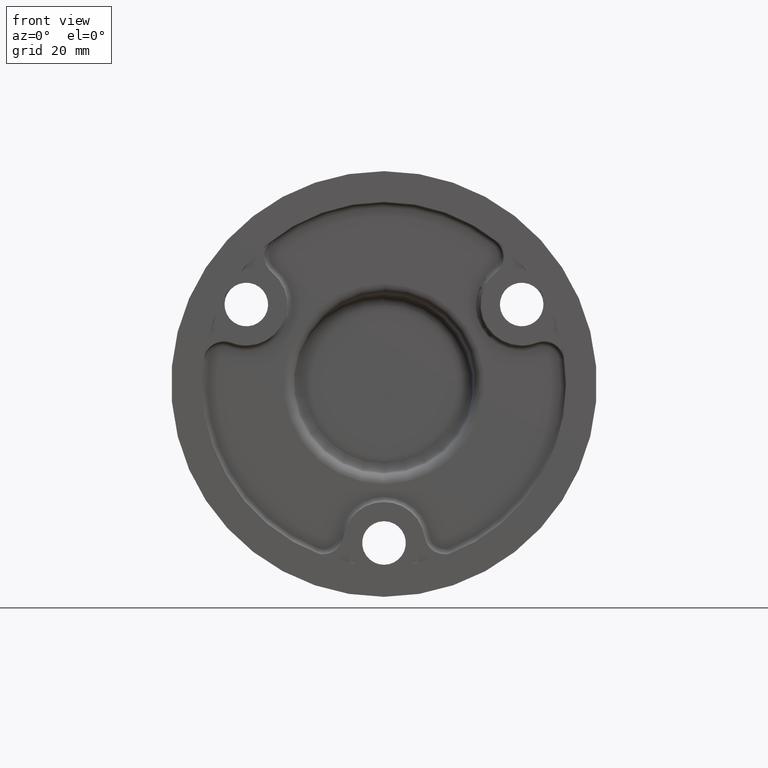
[diagram: clean part render]
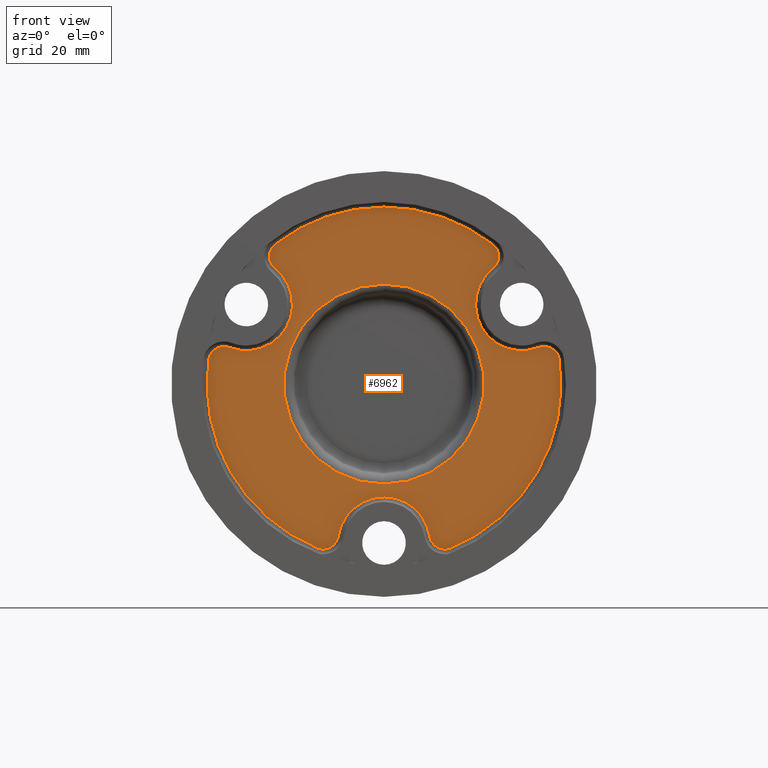
[diagram: same view with one face highlighted and labeled with its STEP entity id]
A machine part, front view. The second image highlights one B-rep face of the part: STEP entity #6962.
In plain terms, the highlighted planar face has unit normal (0, 1, 0).
Its self-contained STEP definition (entity closure, byte-faithful):
#293 = EDGE_CURVE ( 'NONE', #2422, #19411, #5882, .T. ) ;
#458 = DIRECTION ( 'NONE',  ( -0.000000000000000000, 1.000000000000000000, -0.000000000000000000 ) ) ;
#520 = DIRECTION ( 'NONE',  ( 0.000000000000000000, 0.000000000000000000, 1.000000000000000000 ) ) ;
#608 = CARTESIAN_POINT ( 'NONE',  ( -12.99106045790569119, 2.000000000000000000, -31.96063748079876987 ) ) ;
#694 = CIRCLE ( 'NONE', #8969, 3.000000000000002665 ) ;
#972 = ORIENTED_EDGE ( 'NONE', *, *, #11620, .T. ) ;
#1078 = DIRECTION ( 'NONE',  ( 0.000000000000000000, -1.000000000000000000, 0.000000000000000000 ) ) ;
#1114 = ORIENTED_EDGE ( 'NONE', *, *, #8830, .T. ) ;
#1126 = AXIS2_PLACEMENT_3D ( 'NONE', #15956, #5503, #20978 ) ;
#1389 = PLANE ( 'NONE',  #22697 ) ;
#1899 = ORIENTED_EDGE ( 'NONE', *, *, #17568, .T. ) ;
#1957 = DIRECTION ( 'NONE',  ( 0.000000000000000000, 0.000000000000000000, 1.000000000000000000 ) ) ;
#1960 = VERTEX_POINT ( 'NONE', #17996 ) ;
#2004 = EDGE_CURVE ( 'NONE', #1960, #8887, #9904, .T. ) ;
#2156 = CIRCLE ( 'NONE', #18015, 9.000000000000001776 ) ;
#2239 = DIRECTION ( 'NONE',  ( 0.000000000000000000, 0.000000000000000000, 1.000000000000000000 ) ) ;
#2248 = CARTESIAN_POINT ( 'NONE',  ( 30.11363182643359693, 2.000000000000000000, 7.113837095548773526 ) ) ;
#2324 = AXIS2_PLACEMENT_3D ( 'NONE', #19311, #17654, #1957 ) ;
#2326 = CIRCLE ( 'NONE', #16801, 34.50000000000000000 ) ;
#2354 = ORIENTED_EDGE ( 'NONE', *, *, #2004, .T. ) ;
#2370 = EDGE_CURVE ( 'NONE', #7228, #9837, #13449, .T. ) ;
#2422 = VERTEX_POINT ( 'NONE', #2248 ) ;
#2897 = VERTEX_POINT ( 'NONE', #11093 ) ;
#2967 = VERTEX_POINT ( 'NONE', #6305 ) ;
#3172 = DIRECTION ( 'NONE',  ( -0.000000000000000000, 1.000000000000000000, 0.000000000000000000 ) ) ;
#3239 = DIRECTION ( 'NONE',  ( -0.000000000000000000, 1.000000000000000000, -0.000000000000000000 ) ) ;
#3262 = CIRCLE ( 'NONE', #17290, 9.000000000000001776 ) ;
#3314 = CIRCLE ( 'NONE', #19716, 34.50000000000000000 ) ;
#3476 = AXIS2_PLACEMENT_3D ( 'NONE', #3856, #5489, #2239 ) ;
#3856 = CARTESIAN_POINT ( 'NONE',  ( -19.34117690268907808, 2.000000000000000000, 24.86300215217154275 ) ) ;
#3870 = CARTESIAN_POINT ( 'NONE',  ( 11.86140302678345293, 2.000000000000000000, -29.18145161290322420 ) ) ;
#3940 = CARTESIAN_POINT ( 'NONE',  ( 12.99106045790568942, 2.000000000000000000, -31.96063748079876987 ) ) ;
#4428 = CARTESIAN_POINT ( 'NONE',  ( 21.21757955634593173, 2.000000000000000000, 22.52225161412889065 ) ) ;
#4505 = CIRCLE ( 'NONE', #12132, 19.50000000000000355 ) ;
#4524 = CARTESIAN_POINT ( 'NONE',  ( -11.86140302678345293, 2.000000000000000000, -29.18145161290322420 ) ) ;
#4537 = ORIENTED_EDGE ( 'NONE', *, *, #14220, .T. ) ;
#4640 = EDGE_CURVE ( 'NONE', #2967, #8543, #3262, .T. ) ;
#4680 = CARTESIAN_POINT ( 'NONE',  ( 0.000000000000000000, 2.000000000000000000, -22.00000000000000000 ) ) ;
#4812 = AXIS2_PLACEMENT_3D ( 'NONE', #10319, #22487, #18897 ) ;
#4845 = CARTESIAN_POINT ( 'NONE',  ( 31.20257992947228587, 2.000000000000000000, 7.318449460731654810 ) ) ;
#4991 = EDGE_CURVE ( 'NONE', #8887, #11825, #2156, .T. ) ;
#5054 = CIRCLE ( 'NONE', #14756, 3.000000000000002665 ) ;
#5489 = DIRECTION ( 'NONE',  ( 0.000000000000000000, -1.000000000000000000, 0.000000000000000000 ) ) ;
#5503 = DIRECTION ( 'NONE',  ( 0.000000000000000000, -1.000000000000000000, 0.000000000000000000 ) ) ;
#5523 = CARTESIAN_POINT ( 'NONE',  ( -30.11363182643369996, 2.000000000000000000, 7.113837095548353417 ) ) ;
#5807 = DIRECTION ( 'NONE',  ( 0.000000000000000000, 0.000000000000000000, 1.000000000000000000 ) ) ;
#5875 = EDGE_CURVE ( 'NONE', #8120, #2422, #12267, .T. ) ;
#5882 = CIRCLE ( 'NONE', #4812, 9.000000000000001776 ) ;
#6027 = DIRECTION ( 'NONE',  ( 0.000000000000000000, -1.000000000000000000, 0.000000000000000000 ) ) ;
#6284 = DIRECTION ( 'NONE',  ( 0.000000000000000000, 0.000000000000000000, 1.000000000000000000 ) ) ;
#6305 = CARTESIAN_POINT ( 'NONE',  ( -8.896052270087592362, 2.000000000000000000, -29.63608870967742348 ) ) ;
#6401 = DIRECTION ( 'NONE',  ( 0.000000000000000000, 0.000000000000000000, 1.000000000000000000 ) ) ;
#6550 = CARTESIAN_POINT ( 'NONE',  ( -21.21757955634624793, 2.000000000000000000, 22.52225161412859933 ) ) ;
#6687 = DIRECTION ( 'NONE',  ( 0.000000000000000000, -1.000000000000000000, 0.000000000000000000 ) ) ;
#6824 = AXIS2_PLACEMENT_3D ( 'NONE', #3870, #21218, #12726 ) ;
#6962 = ADVANCED_FACE ( 'NONE', ( #11163, #18823 ), #1389, .F. ) ;
#7112 = CIRCLE ( 'NONE', #10444, 2.999999999999998224 ) ;
#7197 = CARTESIAN_POINT ( 'NONE',  ( 0.000000000000000000, 2.000000000000000000, 0.000000000000000000 ) ) ;
#7216 = ORIENTED_EDGE ( 'NONE', *, *, #21470, .T. ) ;
#7228 = VERTEX_POINT ( 'NONE', #15320 ) ;
#7691 = AXIS2_PLACEMENT_3D ( 'NONE', #13385, #14923, #11457 ) ;
#7859 = AXIS2_PLACEMENT_3D ( 'NONE', #12180, #3239, #17314 ) ;
#8120 = VERTEX_POINT ( 'NONE', #4845 ) ;
#8202 = ORIENTED_EDGE ( 'NONE', *, *, #293, .T. ) ;
#8543 = VERTEX_POINT ( 'NONE', #4680 ) ;
#8830 = EDGE_CURVE ( 'NONE', #19411, #13133, #694, .T. ) ;
#8887 = VERTEX_POINT ( 'NONE', #6550 ) ;
#8969 = AXIS2_PLACEMENT_3D ( 'NONE', #10029, #1078, #6401 ) ;
#9000 = AXIS2_PLACEMENT_3D ( 'NONE', #20770, #22527, #12064 ) ;
#9083 = CARTESIAN_POINT ( 'NONE',  ( 0.000000000000000000, 2.000000000000000000, -31.00000000000000000 ) ) ;
#9141 = EDGE_CURVE ( 'NONE', #22595, #7228, #7112, .T. ) ;
#9542 = ORIENTED_EDGE ( 'NONE', *, *, #4640, .T. ) ;
#9650 = AXIS2_PLACEMENT_3D ( 'NONE', #13628, #9795, #11554 ) ;
#9795 = DIRECTION ( 'NONE',  ( 0.000000000000000000, -1.000000000000000000, 0.000000000000000000 ) ) ;
#9837 = VERTEX_POINT ( 'NONE', #608 ) ;
#9904 = CIRCLE ( 'NONE', #3476, 2.999999999999999112 ) ;
#10029 = CARTESIAN_POINT ( 'NONE',  ( 19.34117690268872991, 2.000000000000000000, 24.86300215217181275 ) ) ;
#10319 = CARTESIAN_POINT ( 'NONE',  ( 26.84678751731753010, 2.000000000000000000, 15.50000000000012790 ) ) ;
#10444 = AXIS2_PLACEMENT_3D ( 'NONE', #19695, #21489, #520 ) ;
#10568 = EDGE_CURVE ( 'NONE', #11640, #17831, #16604, .T. ) ;
#10633 = CARTESIAN_POINT ( 'NONE',  ( 21.18319375056384501, 2.000000000000000000, 27.23090711904531958 ) ) ;
#10705 = EDGE_CURVE ( 'NONE', #16999, #8120, #14151, .T. ) ;
#10834 = DIRECTION ( 'NONE',  ( 0.000000000000000000, 0.000000000000000000, 1.000000000000000000 ) ) ;
#10933 = CARTESIAN_POINT ( 'NONE',  ( -26.84678751731773971, 2.000000000000000000, 15.49999999999974953 ) ) ;
#11093 = CARTESIAN_POINT ( 'NONE',  ( 0.000000000000000000, 2.000000000000000000, 34.50000000000000000 ) ) ;
#11163 = FACE_OUTER_BOUND ( 'NONE', #16647, .T. ) ;
#11457 = DIRECTION ( 'NONE',  ( 0.000000000000000000, 0.000000000000000000, 1.000000000000000000 ) ) ;
#11499 = ORIENTED_EDGE ( 'NONE', *, *, #10705, .T. ) ;
#11554 = DIRECTION ( 'NONE',  ( -2.312964634635744239E-15, 0.000000000000000000, 1.000000000000000000 ) ) ;
#11620 = EDGE_CURVE ( 'NONE', #13133, #2897, #2326, .T. ) ;
#11640 = VERTEX_POINT ( 'NONE', #17201 ) ;
#11694 = CARTESIAN_POINT ( 'NONE',  ( 0.000000000000000000, 2.000000000000000000, 0.000000000000000000 ) ) ;
#11802 = ORIENTED_EDGE ( 'NONE', *, *, #16256, .T. ) ;
#11825 = VERTEX_POINT ( 'NONE', #5523 ) ;
#12064 = DIRECTION ( 'NONE',  ( -1.156482317317872119E-15, 0.000000000000000000, 1.000000000000000000 ) ) ;
#12132 = AXIS2_PLACEMENT_3D ( 'NONE', #21820, #16569, #19808 ) ;
#12166 = EDGE_CURVE ( 'NONE', #15840, #18153, #17898, .T. ) ;
#12180 = CARTESIAN_POINT ( 'NONE',  ( 0.000000000000000000, 2.000000000000000000, -31.00000000000000000 ) ) ;
#12267 = CIRCLE ( 'NONE', #12588, 2.999999999999998224 ) ;
#12291 = DIRECTION ( 'NONE',  ( 0.000000000000000000, 0.000000000000000000, 1.000000000000000000 ) ) ;
#12308 = ORIENTED_EDGE ( 'NONE', *, *, #10568, .T. ) ;
#12584 = ORIENTED_EDGE ( 'NONE', *, *, #4991, .T. ) ;
#12588 = AXIS2_PLACEMENT_3D ( 'NONE', #19875, #6027, #5807 ) ;
#12726 = DIRECTION ( 'NONE',  ( 1.734723475976807686E-15, 0.000000000000000000, 1.000000000000000000 ) ) ;
#13133 = VERTEX_POINT ( 'NONE', #10633 ) ;
#13385 = CARTESIAN_POINT ( 'NONE',  ( 0.000000000000000000, 2.000000000000000000, 0.000000000000000000 ) ) ;
#13449 = CIRCLE ( 'NONE', #1126, 34.50000000000000000 ) ;
#13628 = CARTESIAN_POINT ( 'NONE',  ( -31.20257992947234627, 2.000000000000000000, 4.318449460731218714 ) ) ;
#13640 = ORIENTED_EDGE ( 'NONE', *, *, #15854, .T. ) ;
#14040 = ORIENTED_EDGE ( 'NONE', *, *, #5875, .T. ) ;
#14151 = CIRCLE ( 'NONE', #9000, 2.999999999999998224 ) ;
#14220 = EDGE_CURVE ( 'NONE', #8543, #15840, #19615, .T. ) ;
#14474 = DIRECTION ( 'NONE',  ( 0.000000000000000000, 0.000000000000000000, 1.000000000000000000 ) ) ;
#14756 = AXIS2_PLACEMENT_3D ( 'NONE', #4524, #14994, #6284 ) ;
#14923 = DIRECTION ( 'NONE',  ( -0.000000000000000000, 1.000000000000000000, -0.000000000000000000 ) ) ;
#14994 = DIRECTION ( 'NONE',  ( 0.000000000000000000, -1.000000000000000000, 0.000000000000000000 ) ) ;
#15320 = CARTESIAN_POINT ( 'NONE',  ( -34.17425420846971207, 2.000000000000000000, 4.729730361753239798 ) ) ;
#15418 = DIRECTION ( 'NONE',  ( 0.000000000000000000, 0.000000000000000000, 1.000000000000000000 ) ) ;
#15607 = ORIENTED_EDGE ( 'NONE', *, *, #9141, .T. ) ;
#15753 = CIRCLE ( 'NONE', #2324, 34.50000000000000000 ) ;
#15840 = VERTEX_POINT ( 'NONE', #21785 ) ;
#15854 = EDGE_CURVE ( 'NONE', #9837, #2967, #5054, .T. ) ;
#15956 = CARTESIAN_POINT ( 'NONE',  ( 0.000000000000000000, 2.000000000000000000, 0.000000000000000000 ) ) ;
#16256 = EDGE_CURVE ( 'NONE', #17831, #11640, #4505, .T. ) ;
#16569 = DIRECTION ( 'NONE',  ( -0.000000000000000000, 1.000000000000000000, -0.000000000000000000 ) ) ;
#16604 = CIRCLE ( 'NONE', #7691, 19.50000000000000355 ) ;
#16647 = EDGE_LOOP ( 'NONE', ( #21517, #13640, #9542, #4537, #19041, #18108, #11499, #14040, #8202, #1114, #972, #7216, #2354, #12584, #1899, #15607 ) ) ;
#16801 = AXIS2_PLACEMENT_3D ( 'NONE', #11694, #6687, #16912 ) ;
#16912 = DIRECTION ( 'NONE',  ( -1.776356839400250465E-15, 0.000000000000000000, 1.000000000000000000 ) ) ;
#16999 = VERTEX_POINT ( 'NONE', #17267 ) ;
#17162 = CARTESIAN_POINT ( 'NONE',  ( -5.930701513391726465, 2.000000000000000000, -14.59072580645161210 ) ) ;
#17201 = CARTESIAN_POINT ( 'NONE',  ( 0.000000000000000000, 2.000000000000000000, 19.50000000000000355 ) ) ;
#17267 = CARTESIAN_POINT ( 'NONE',  ( 34.17425420846964812, 2.000000000000000000, 4.729730361753719414 ) ) ;
#17290 = AXIS2_PLACEMENT_3D ( 'NONE', #9083, #21317, #10834 ) ;
#17314 = DIRECTION ( 'NONE',  ( 0.000000000000000000, 0.000000000000000000, 1.000000000000000000 ) ) ;
#17568 = EDGE_CURVE ( 'NONE', #11825, #22595, #18383, .T. ) ;
#17654 = DIRECTION ( 'NONE',  ( 0.000000000000000000, -1.000000000000000000, 0.000000000000000000 ) ) ;
#17831 = VERTEX_POINT ( 'NONE', #18184 ) ;
#17898 = CIRCLE ( 'NONE', #6824, 2.999999999999999112 ) ;
#17996 = CARTESIAN_POINT ( 'NONE',  ( -21.18319375056422516, 2.000000000000000000, 27.23090711904502470 ) ) ;
#18015 = AXIS2_PLACEMENT_3D ( 'NONE', #10933, #458, #14474 ) ;
#18108 = ORIENTED_EDGE ( 'NONE', *, *, #18822, .T. ) ;
#18153 = VERTEX_POINT ( 'NONE', #3940 ) ;
#18184 = CARTESIAN_POINT ( 'NONE',  ( 2.388061258337339333E-15, 2.000000000000000000, -19.50000000000000355 ) ) ;
#18383 = CIRCLE ( 'NONE', #9650, 2.999999999999998224 ) ;
#18822 = EDGE_CURVE ( 'NONE', #18153, #16999, #3314, .T. ) ;
#18823 = FACE_BOUND ( 'NONE', #21352, .T. ) ;
#18897 = DIRECTION ( 'NONE',  ( 0.000000000000000000, 0.000000000000000000, 1.000000000000000000 ) ) ;
#19041 = ORIENTED_EDGE ( 'NONE', *, *, #12166, .T. ) ;
#19311 = CARTESIAN_POINT ( 'NONE',  ( 0.000000000000000000, 2.000000000000000000, 0.000000000000000000 ) ) ;
#19411 = VERTEX_POINT ( 'NONE', #4428 ) ;
#19615 = CIRCLE ( 'NONE', #7859, 9.000000000000001776 ) ;
#19695 = CARTESIAN_POINT ( 'NONE',  ( -31.20257992947234627, 2.000000000000000000, 4.318449460731218714 ) ) ;
#19716 = AXIS2_PLACEMENT_3D ( 'NONE', #7197, #21004, #12291 ) ;
#19808 = DIRECTION ( 'NONE',  ( 0.000000000000000000, 0.000000000000000000, 1.000000000000000000 ) ) ;
#19875 = CARTESIAN_POINT ( 'NONE',  ( 31.20257992947228587, 2.000000000000000000, 4.318449460731656586 ) ) ;
#20770 = CARTESIAN_POINT ( 'NONE',  ( 31.20257992947228587, 2.000000000000000000, 4.318449460731656586 ) ) ;
#20978 = DIRECTION ( 'NONE',  ( 0.000000000000000000, 0.000000000000000000, 1.000000000000000000 ) ) ;
#21004 = DIRECTION ( 'NONE',  ( 0.000000000000000000, -1.000000000000000000, 0.000000000000000000 ) ) ;
#21218 = DIRECTION ( 'NONE',  ( 0.000000000000000000, -1.000000000000000000, 0.000000000000000000 ) ) ;
#21317 = DIRECTION ( 'NONE',  ( -0.000000000000000000, 1.000000000000000000, -0.000000000000000000 ) ) ;
#21352 = EDGE_LOOP ( 'NONE', ( #12308, #11802 ) ) ;
#21470 = EDGE_CURVE ( 'NONE', #2897, #1960, #15753, .T. ) ;
#21489 = DIRECTION ( 'NONE',  ( 0.000000000000000000, -1.000000000000000000, 0.000000000000000000 ) ) ;
#21517 = ORIENTED_EDGE ( 'NONE', *, *, #2370, .T. ) ;
#21785 = CARTESIAN_POINT ( 'NONE',  ( 8.896052270087592362, 2.000000000000000000, -29.63608870967742348 ) ) ;
#21820 = CARTESIAN_POINT ( 'NONE',  ( 0.000000000000000000, 2.000000000000000000, 0.000000000000000000 ) ) ;
#22180 = CARTESIAN_POINT ( 'NONE',  ( -31.20257992947234627, 2.000000000000000000, 7.318449460731216938 ) ) ;
#22487 = DIRECTION ( 'NONE',  ( -0.000000000000000000, 1.000000000000000000, -0.000000000000000000 ) ) ;
#22527 = DIRECTION ( 'NONE',  ( 0.000000000000000000, -1.000000000000000000, 0.000000000000000000 ) ) ;
#22595 = VERTEX_POINT ( 'NONE', #22180 ) ;
#22697 = AXIS2_PLACEMENT_3D ( 'NONE', #17162, #3172, #15418 ) ;